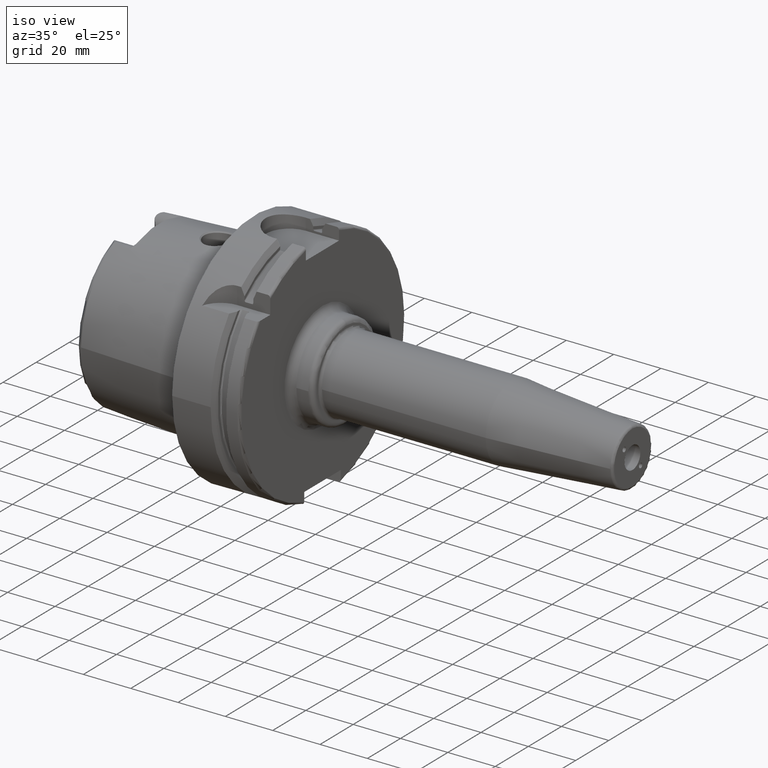
[diagram: clean part render]
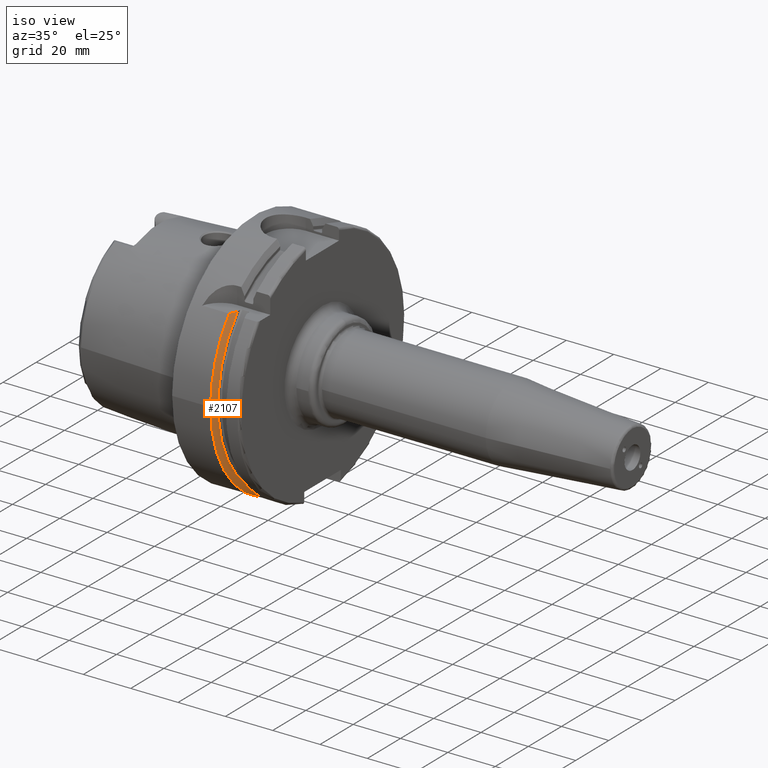
[diagram: same view with one face highlighted and labeled with its STEP entity id]
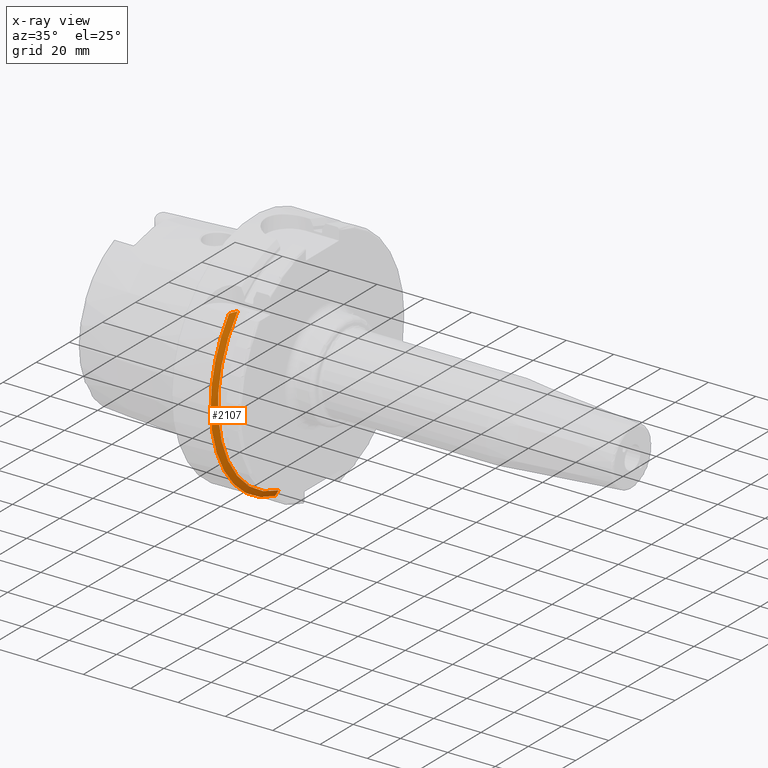
[diagram: x-ray of the same camera — body ghosted, the highlighted face saturated]
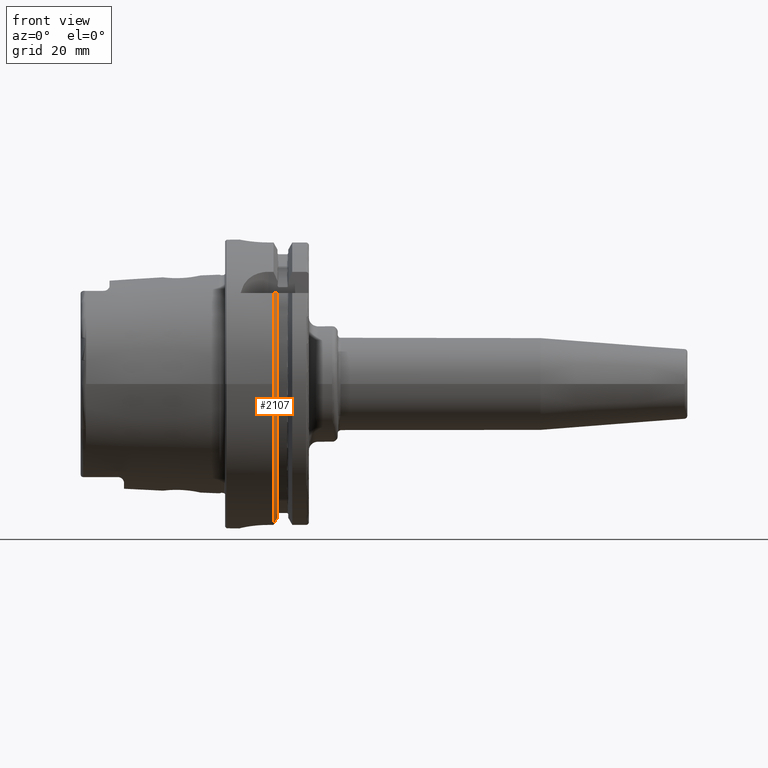
[diagram: same view with one face highlighted and labeled with its STEP entity id]
A machine part, iso view. The second image highlights one B-rep face of the part: STEP entity #2107.
The next image is the same camera in x-ray: the body ghosted, the highlighted face saturated — about 0% of this face is hidden behind the body in this view.
A second angle (front view) of the same face is appended — the face is thin or edge-on in the first view.
In plain terms, the highlighted conical surface has half-angle 60 deg.
Its self-contained STEP definition (entity closure, byte-faithful):
#19=(
BOUNDED_CURVE()
B_SPLINE_CURVE(2,(#4000,#4001,#4002),.UNSPECIFIED.,.F.,.F.)
B_SPLINE_CURVE_WITH_KNOTS((3,3),(0.,0.343884390880417),.UNSPECIFIED.)
CURVE()
GEOMETRIC_REPRESENTATION_ITEM()
RATIONAL_B_SPLINE_CURVE((1.,1.00052016257104,1.))
REPRESENTATION_ITEM('')
);
#26=(
BOUNDED_CURVE()
B_SPLINE_CURVE(2,(#4278,#4279,#4280),.UNSPECIFIED.,.F.,.F.)
B_SPLINE_CURVE_WITH_KNOTS((3,3),(0.,0.282923490805558),.UNSPECIFIED.)
CURVE()
GEOMETRIC_REPRESENTATION_ITEM()
RATIONAL_B_SPLINE_CURVE((1.,1.00031934109636,1.))
REPRESENTATION_ITEM('')
);
#323=FACE_OUTER_BOUND('',#458,.T.);
#458=EDGE_LOOP('',(#1936,#1937,#1938,#1939,#1940));
#742=CIRCLE('',#2255,50.);
#744=CIRCLE('',#2257,50.);
#805=CIRCLE('',#2385,47.5975952641917);
#932=VERTEX_POINT('',#3997);
#933=VERTEX_POINT('',#3999);
#950=VERTEX_POINT('',#4101);
#951=VERTEX_POINT('',#4103);
#979=VERTEX_POINT('',#4276);
#1178=EDGE_CURVE('',#933,#932,#19,.T.);
#1197=EDGE_CURVE('',#951,#950,#742,.T.);
#1200=EDGE_CURVE('',#932,#951,#744,.T.);
#1240=EDGE_CURVE('',#950,#979,#26,.T.);
#1330=EDGE_CURVE('',#933,#979,#805,.T.);
#1936=ORIENTED_EDGE('',*,*,#1178,.T.);
#1937=ORIENTED_EDGE('',*,*,#1200,.T.);
#1938=ORIENTED_EDGE('',*,*,#1197,.T.);
#1939=ORIENTED_EDGE('',*,*,#1240,.T.);
#1940=ORIENTED_EDGE('',*,*,#1330,.F.);
#1993=CONICAL_SURFACE('',#2384,48.7987976320958,1.0471975511966);
#2107=ADVANCED_FACE('',(#323),#1993,.T.);
#2255=AXIS2_PLACEMENT_3D('',#4104,#2695,#2696);
#2257=AXIS2_PLACEMENT_3D('',#4108,#2700,#2701);
#2384=AXIS2_PLACEMENT_3D('',#4542,#2998,#2999);
#2385=AXIS2_PLACEMENT_3D('',#4543,#3000,#3001);
#2695=DIRECTION('center_axis',(1.,0.,0.));
#2696=DIRECTION('ref_axis',(0.,0.,-1.));
#2700=DIRECTION('center_axis',(1.,0.,0.));
#2701=DIRECTION('ref_axis',(0.,0.,-1.));
#2998=DIRECTION('center_axis',(-1.,0.,0.));
#2999=DIRECTION('ref_axis',(0.,-0.951449961441176,-0.307803461438603));
#3000=DIRECTION('center_axis',(1.,0.,0.));
#3001=DIRECTION('ref_axis',(0.,0.,-1.));
#3997=CARTESIAN_POINT('',(16.7379709790786,-38.8297566307078,31.5));
#3999=CARTESIAN_POINT('',(18.125,-35.6830642593065,31.5));
#4000=CARTESIAN_POINT('Ctrl Pts',(18.125,-35.6830642593066,31.5));
#4001=CARTESIAN_POINT('Ctrl Pts',(17.4607727557241,-37.2176818849689,31.5));
#4002=CARTESIAN_POINT('Ctrl Pts',(16.7379709790786,-38.8297566307079,31.5));
#4101=CARTESIAN_POINT('',(16.7379709790786,-11.,-48.7749935930288));
#4103=CARTESIAN_POINT('',(16.7379709790786,-50.,-6.12323399573677E-15));
#4104=CARTESIAN_POINT('Origin',(16.7379709790786,0.,0.));
#4108=CARTESIAN_POINT('Origin',(16.7379709790786,0.,0.));
#4276=CARTESIAN_POINT('',(18.125,-11.,-46.3090819919139));
#4278=CARTESIAN_POINT('Ctrl Pts',(16.7379709790786,-11.,-48.7749935930288));
#4279=CARTESIAN_POINT('Ctrl Pts',(17.4494711035784,-11.,-47.5116880808765));
#4280=CARTESIAN_POINT('Ctrl Pts',(18.125,-11.,-46.3090819919139));
#4542=CARTESIAN_POINT('Origin',(17.4314854895393,0.,0.));
#4543=CARTESIAN_POINT('Origin',(18.125,0.,0.));